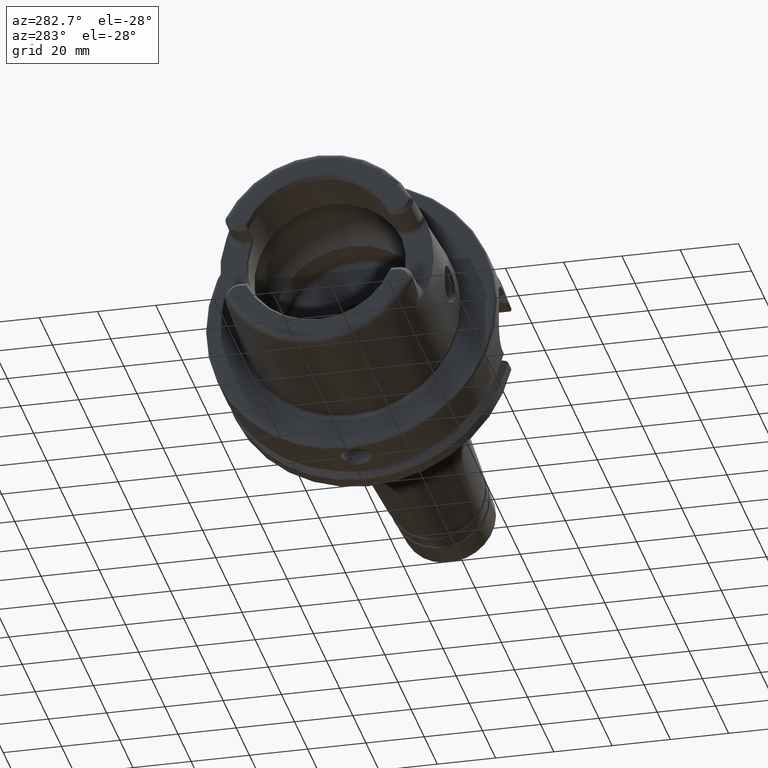
[diagram: clean part render]
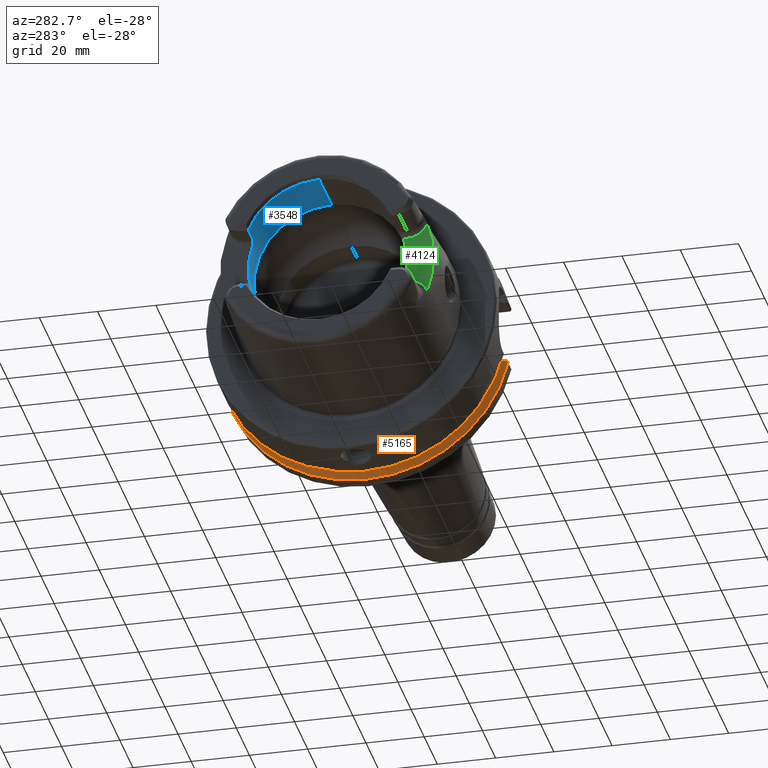
[diagram: same view with three faces highlighted in distinct colors, each labeled with its STEP entity id]
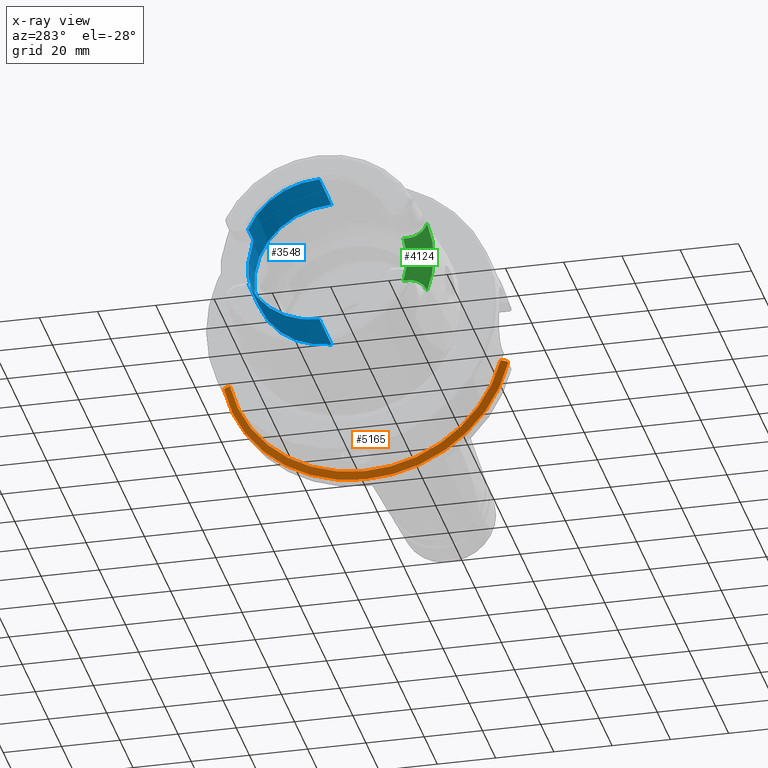
[diagram: x-ray of the same camera — body ghosted, the three highlighted faces saturated]
A machine part, auxiliary view with three faces highlighted in distinct colors.
The next image is the same camera in x-ray (body ghosted, the three faces saturated) — at least one of them is partly hidden behind the body in this view.
Their STEP definitions:

[orange] entity #5165 — the highlighted conical surface has half-angle 60 deg.
#1738=CARTESIAN_POINT('',(9.025137546178E-1,-1.897637795276E0,
-4.330708661417E-1));
#1739=CARTESIAN_POINT('',(9.046209774077E-1,-1.900685839744E0,
-4.361189106105E-1));
#1740=CARTESIAN_POINT('',(9.088525153425E-1,-1.906799881801E0,
-4.422329526667E-1));
#1741=CARTESIAN_POINT('',(9.131182434190E-1,-1.912949828220E0,
-4.483828990862E-1));
#1742=CARTESIAN_POINT('',(9.152596560705E-1,-1.916033777145E0,
-4.514668480115E-1));
#1744=CARTESIAN_POINT('',(9.152596560705E-1,0.E0,0.E0));
#1745=DIRECTION('',(1.E0,0.E0,0.E0));
#1746=DIRECTION('',(0.E0,-9.733451587899E-1,-2.293451587899E-1));
#1747=AXIS2_PLACEMENT_3D('',#1744,#1745,#1746);
#1749=CARTESIAN_POINT('',(9.152596560705E-1,1.925405964459E0,
-4.096579329633E-1));
#1750=CARTESIAN_POINT('',(9.140390772167E-1,1.923623733484E0,
-4.078757019878E-1));
#1751=CARTESIAN_POINT('',(9.116037837886E-1,1.920065414719E0,
-4.043173832231E-1));
#1752=CARTESIAN_POINT('',(9.079684511996E-1,1.914746392828E0,
-3.989983613315E-1));
#1753=CARTESIAN_POINT('',(9.055565973462E-1,1.911212631659E0,
-3.954646001630E-1));
#1754=CARTESIAN_POINT('',(9.043535981212E-1,1.909448818898E0,
-3.937007874016E-1));
#1756=CARTESIAN_POINT('',(8.612204724409E-1,1.833103834776E0,
-3.937007874016E-1));
#1757=CARTESIAN_POINT('',(8.659535952046E-1,1.841488788556E0,
-3.937007874016E-1));
#1758=CARTESIAN_POINT('',(8.754595041852E-1,1.858323888430E0,
-3.937007874016E-1));
#1759=CARTESIAN_POINT('',(8.898371061260E-1,1.883771910416E0,
-3.937007874016E-1));
#1760=CARTESIAN_POINT('',(8.995015633009E-1,1.900868070473E0,
-3.937007874016E-1));
#1761=CARTESIAN_POINT('',(9.043535981212E-1,1.909448818898E0,
-3.937007874016E-1));
#1763=CARTESIAN_POINT('',(8.612204724409E-1,0.E0,0.E0));
#1764=DIRECTION('',(-1.E0,0.E0,0.E0));
#1765=DIRECTION('',(0.E0,9.777047459300E-1,-2.099843560504E-1));
#1766=AXIS2_PLACEMENT_3D('',#1763,#1764,#1765);
#1768=CARTESIAN_POINT('',(9.025137546178E-1,-1.897637795276E0,
-4.330708661417E-1));
#1769=CARTESIAN_POINT('',(8.978681737041E-1,-1.889384534998E0,
-4.330708661417E-1));
#1770=CARTESIAN_POINT('',(8.886152725787E-1,-1.872940656948E0,
-4.330708661417E-1));
#1771=CARTESIAN_POINT('',(8.748509540484E-1,-1.848462980664E0,
-4.330708661417E-1));
#1772=CARTESIAN_POINT('',(8.657511955581E-1,-1.832269380053E0,
-4.330708661417E-1));
#1773=CARTESIAN_POINT('',(8.612204724409E-1,-1.824203827419E0,
-4.330708661417E-1));
#2894=CARTESIAN_POINT('',(8.612204724409E-1,1.833103834776E0,
-3.937007874016E-1));
#2895=VERTEX_POINT('',#2894);
#2918=CARTESIAN_POINT('',(8.612204724409E-1,-1.824203827419E0,
-4.330708661417E-1));
#2919=VERTEX_POINT('',#2918);
#3144=VERTEX_POINT('',#1749);
#3145=VERTEX_POINT('',#1754);
#3160=VERTEX_POINT('',#1738);
#3161=VERTEX_POINT('',#1742);
#5151=CARTESIAN_POINT('',(8.882400642557E-1,0.E0,0.E0));
#5152=DIRECTION('',(1.E0,0.E0,0.E0));
#5153=DIRECTION('',(0.E0,0.E0,1.E0));
#5154=AXIS2_PLACEMENT_3D('',#5151,#5152,#5153);
#5155=CONICAL_SURFACE('',#5154,1.921704631185E0,6.E1);
#5156=ORIENTED_EDGE('',*,*,#4859,.T.);
#5157=ORIENTED_EDGE('',*,*,#4753,.T.);
#5158=ORIENTED_EDGE('',*,*,#5044,.T.);
#5159=ORIENTED_EDGE('',*,*,#5070,.F.);
#5161=ORIENTED_EDGE('',*,*,#5160,.T.);
#5162=ORIENTED_EDGE('',*,*,#5117,.F.);
#5163=EDGE_LOOP('',(#5156,#5157,#5158,#5159,#5161,#5162));
#5164=FACE_OUTER_BOUND('',#5163,.F.);
#5165=ADVANCED_FACE('',(#5164),#5155,.T.);
#1743=B_SPLINE_CURVE_WITH_KNOTS('',3,(#1738,#1739,#1740,#1741,#1742),
.UNSPECIFIED.,.F.,.F.,(4,1,4),(0.E0,5.E-1,1.E0),.UNSPECIFIED.);
#1748=CIRCLE('',#1747,1.968503937008E0);
#1755=B_SPLINE_CURVE_WITH_KNOTS('',3,(#1749,#1750,#1751,#1752,#1753,#1754),
.UNSPECIFIED.,.F.,.F.,(4,1,1,4),(0.E0,3.333333333333E-1,6.666666666667E-1,1.E0),
.UNSPECIFIED.);
#1762=B_SPLINE_CURVE_WITH_KNOTS('',3,(#1756,#1757,#1758,#1759,#1760,#1761),
.UNSPECIFIED.,.F.,.F.,(4,1,1,4),(0.E0,3.333333333333E-1,6.666666666667E-1,1.E0),
.UNSPECIFIED.);
#1767=CIRCLE('',#1766,1.874905325362E0);
#1774=B_SPLINE_CURVE_WITH_KNOTS('',3,(#1768,#1769,#1770,#1771,#1772,#1773),
.UNSPECIFIED.,.F.,.F.,(4,1,1,4),(0.E0,3.333333333333E-1,6.666666666667E-1,1.E0),
.UNSPECIFIED.);
#4753=EDGE_CURVE('',#3161,#3144,#1748,.T.);
#4859=EDGE_CURVE('',#3160,#3161,#1743,.T.);
#5044=EDGE_CURVE('',#3144,#3145,#1755,.T.);
#5070=EDGE_CURVE('',#2895,#3145,#1762,.T.);
#5117=EDGE_CURVE('',#3160,#2919,#1774,.T.);
#5160=EDGE_CURVE('',#2895,#2919,#1767,.T.);

[blue] entity #3548 — the highlighted cylindrical surface (partial cylindrical patch) has radius 26.5 mm, axis along (1, 0, 0).
#237=CARTESIAN_POINT('',(-1.909448818898E0,0.E0,0.E0));
#238=DIRECTION('',(1.E0,0.E0,0.E0));
#239=DIRECTION('',(0.E0,0.E0,-1.E0));
#240=AXIS2_PLACEMENT_3D('',#237,#238,#239);
#242=DIRECTION('',(-1.E0,-2.018124298135E-10,-3.491153386467E-10));
#243=VECTOR('',#242,2.559054990718E-1);
#244=CARTESIAN_POINT('',(-1.653543319825E0,9.610196174403E-1,
-4.061169436263E-1));
#245=LINE('',#244,#243);
#246=CARTESIAN_POINT('',(-1.555118109895E0,9.963385298506E-1,
-3.095144762176E-1));
#247=CARTESIAN_POINT('',(-1.555037675798E0,9.936024567075E-1,
-3.183219979772E-1));
#248=CARTESIAN_POINT('',(-1.557495417086E0,9.880950848529E-1,
-3.352497519196E-1));
#249=CARTESIAN_POINT('',(-1.567977783280E0,9.794626794392E-1,
-3.596361125423E-1));
#250=CARTESIAN_POINT('',(-1.584498344667E0,9.717347583803E-1,
-3.799234196567E-1));
#251=CARTESIAN_POINT('',(-1.605491004577E0,9.656273490341E-1,
-3.951075878999E-1));
#252=CARTESIAN_POINT('',(-1.629474352871E0,9.618298240014E-1,
-4.042085152567E-1));
#253=CARTESIAN_POINT('',(-1.645414990490E0,9.609989741340E-1,
-4.061657931575E-1));
#254=CARTESIAN_POINT('',(-1.653543319825E0,9.610196174403E-1,
-4.061169436263E-1));
#256=CARTESIAN_POINT('',(-1.555118110236E0,0.E0,0.E0));
#257=DIRECTION('',(-1.E0,0.E0,0.E0));
#258=DIRECTION('',(0.E0,9.549810934720E-1,2.966666666667E-1));
#259=AXIS2_PLACEMENT_3D('',#256,#257,#258);
#261=CARTESIAN_POINT('',(-1.653543307688E0,9.610196173903E-1,
4.061169437139E-1));
#262=CARTESIAN_POINT('',(-1.645181784229E0,9.610138646002E-1,
4.061305568966E-1));
#263=CARTESIAN_POINT('',(-1.628924072196E0,9.618781018689E-1,
4.040945314903E-1));
#264=CARTESIAN_POINT('',(-1.605202096531E0,9.657046485065E-1,
3.949182109612E-1));
#265=CARTESIAN_POINT('',(-1.584339430473E0,9.717909810563E-1,
3.797805895288E-1));
#266=CARTESIAN_POINT('',(-1.567787160606E0,9.795728330894E-1,
3.593392097813E-1));
#267=CARTESIAN_POINT('',(-1.557426075219E0,9.881983737369E-1,
3.349416903203E-1));
#268=CARTESIAN_POINT('',(-1.555035569701E0,9.936427153461E-1,
3.181924040950E-1));
#269=CARTESIAN_POINT('',(-1.555118109663E0,9.963385210662E-1,
3.095145046758E-1));
#271=DIRECTION('',(1.E0,5.420409433201E-12,-6.342104634164E-12));
#272=VECTOR('',#271,2.559055112093E-1);
#273=CARTESIAN_POINT('',(-1.909448818897E0,9.610196173889E-1,
4.061169437155E-1));
#274=LINE('',#273,#272);
#275=CARTESIAN_POINT('',(-1.909448818898E0,0.E0,0.E0));
#276=DIRECTION('',(1.E0,0.E0,0.E0));
#277=DIRECTION('',(0.E0,9.211282370446E-1,3.892592592593E-1));
#278=AXIS2_PLACEMENT_3D('',#275,#276,#277);
#280=CARTESIAN_POINT('',(-1.181235262716E0,0.E0,0.E0));
#281=DIRECTION('',(1.E0,0.E0,0.E0));
#282=DIRECTION('',(0.E0,0.E0,-1.E0));
#283=AXIS2_PLACEMENT_3D('',#280,#281,#282);
#308=DIRECTION('',(-1.E0,-5.528316860954E-9,2.894149050536E-11));
#309=VECTOR('',#308,7.282135561456E-1);
#310=CARTESIAN_POINT('',(-1.181235262716E0,0.E0,-1.043307086614E0));
#311=LINE('',#310,#309);
#317=DIRECTION('',(-1.E0,5.528316817347E-9,-2.893844133657E-11));
#318=VECTOR('',#317,7.282135561456E-1);
#319=CARTESIAN_POINT('',(-1.181235262716E0,0.E0,1.043307086614E0));
#320=LINE('',#319,#318);
#2822=CARTESIAN_POINT('',(-1.181235262716E0,0.E0,-1.043307086614E0));
#2823=CARTESIAN_POINT('',(-1.181235262716E0,0.E0,1.043307086614E0));
#2824=VERTEX_POINT('',#2822);
#2825=VERTEX_POINT('',#2823);
#3003=VERTEX_POINT('',#246);
#3004=VERTEX_POINT('',#254);
#3007=CARTESIAN_POINT('',(-1.555118110236E0,9.963385424018E-1,
3.095144356955E-1));
#3008=VERTEX_POINT('',#3007);
#3011=VERTEX_POINT('',#261);
#3023=CARTESIAN_POINT('',(-1.909448818898E0,0.E0,-1.043307086614E0));
#3024=CARTESIAN_POINT('',(-1.909448818898E0,9.610196173891E-1,
-4.061169437154E-1));
#3025=VERTEX_POINT('',#3023);
#3026=VERTEX_POINT('',#3024);
#3029=CARTESIAN_POINT('',(-1.909448818898E0,0.E0,1.043307086614E0));
#3031=VERTEX_POINT('',#3029);
#3033=CARTESIAN_POINT('',(-1.909448818898E0,9.610196173891E-1,
4.061169437154E-1));
#3034=VERTEX_POINT('',#3033);
#3522=CARTESIAN_POINT('',(0.E0,0.E0,0.E0));
#3523=DIRECTION('',(1.E0,0.E0,0.E0));
#3524=DIRECTION('',(0.E0,0.E0,1.E0));
#3525=AXIS2_PLACEMENT_3D('',#3522,#3523,#3524);
#3526=CYLINDRICAL_SURFACE('',#3525,1.043307086614E0);
#3528=ORIENTED_EDGE('',*,*,#3527,.T.);
#3530=ORIENTED_EDGE('',*,*,#3529,.F.);
#3532=ORIENTED_EDGE('',*,*,#3531,.F.);
#3533=ORIENTED_EDGE('',*,*,#3496,.F.);
#3535=ORIENTED_EDGE('',*,*,#3534,.F.);
#3537=ORIENTED_EDGE('',*,*,#3536,.F.);
#3539=ORIENTED_EDGE('',*,*,#3538,.T.);
#3541=ORIENTED_EDGE('',*,*,#3540,.F.);
#3543=ORIENTED_EDGE('',*,*,#3542,.F.);
#3545=ORIENTED_EDGE('',*,*,#3544,.T.);
#3546=EDGE_LOOP('',(#3528,#3530,#3532,#3533,#3535,#3537,#3539,#3541,#3543,
#3545));
#3547=FACE_OUTER_BOUND('',#3546,.F.);
#3548=ADVANCED_FACE('',(#3547),#3526,.F.);
#241=CIRCLE('',#240,1.043307086614E0);
#255=B_SPLINE_CURVE_WITH_KNOTS('',3,(#246,#247,#248,#249,#250,#251,#252,#253,
#254),.UNSPECIFIED.,.F.,.F.,(4,1,1,1,1,1,4),(0.E0,1.666666666667E-1,
3.333333333333E-1,5.E-1,6.666666666667E-1,8.333333333333E-1,1.E0),
.UNSPECIFIED.);
#260=CIRCLE('',#259,1.043307086614E0);
#270=B_SPLINE_CURVE_WITH_KNOTS('',3,(#261,#262,#263,#264,#265,#266,#267,#268,
#269),.UNSPECIFIED.,.F.,.F.,(4,1,1,1,1,1,4),(0.E0,1.666666666667E-1,
3.333333333333E-1,5.E-1,6.666666666667E-1,8.333333333333E-1,1.E0),
.UNSPECIFIED.);
#279=CIRCLE('',#278,1.043307086614E0);
#284=CIRCLE('',#283,1.043307086614E0);
#3496=EDGE_CURVE('',#3008,#3003,#260,.T.);
#3527=EDGE_CURVE('',#3025,#3026,#241,.T.);
#3529=EDGE_CURVE('',#3004,#3026,#245,.T.);
#3531=EDGE_CURVE('',#3003,#3004,#255,.T.);
#3534=EDGE_CURVE('',#3011,#3008,#270,.T.);
#3536=EDGE_CURVE('',#3034,#3011,#274,.T.);
#3538=EDGE_CURVE('',#3034,#3031,#279,.T.);
#3540=EDGE_CURVE('',#2825,#3031,#320,.T.);
#3542=EDGE_CURVE('',#2824,#2825,#284,.T.);
#3544=EDGE_CURVE('',#2824,#3025,#311,.T.);

[green] entity #4124 — the highlighted planar face has unit normal (1, 0, 0).
#939=CARTESIAN_POINT('',(-1.377952755906E0,-1.260103132950E-14,
-1.088018564133E-14));
#940=DIRECTION('',(-1.E0,0.E0,0.E0));
#941=DIRECTION('',(0.E0,-9.549810934720E-1,-2.966666666667E-1));
#942=AXIS2_PLACEMENT_3D('',#939,#940,#941);
#944=DIRECTION('',(-5.228454142383E-9,-9.999999999998E-1,-6.388562258925E-7));
#945=VECTOR('',#944,6.242168774789E-2);
#946=CARTESIAN_POINT('',(-1.377952755579E0,-1.015137367336E0,
3.153543705966E-1));
#947=LINE('',#946,#945);
#948=CARTESIAN_POINT('',(-1.377952755906E0,-1.077559055118E0,
5.862204724409E-1));
#949=DIRECTION('',(-1.E0,0.E0,0.E0));
#950=DIRECTION('',(0.E0,0.E0,-1.E0));
#951=AXIS2_PLACEMENT_3D('',#948,#949,#950);
#953=CARTESIAN_POINT('',(-1.377952755906E0,0.E0,0.E0));
#954=DIRECTION('',(1.E0,0.E0,0.E0));
#955=DIRECTION('',(0.E0,-9.357628524911E-1,3.526299532055E-1));
#956=AXIS2_PLACEMENT_3D('',#953,#954,#955);
#958=CARTESIAN_POINT('',(-1.377952755906E0,-1.077559055118E0,
-5.862204724409E-1));
#959=DIRECTION('',(1.E0,0.E0,0.E0));
#960=DIRECTION('',(0.E0,0.E0,1.E0));
#961=AXIS2_PLACEMENT_3D('',#958,#959,#960);
#963=DIRECTION('',(-3.712462956982E-9,-9.999999999999E-1,4.244865866481E-7));
#964=VECTOR('',#963,6.242168255493E-2);
#965=CARTESIAN_POINT('',(-1.377952755674E0,-1.015137372499E0,
-3.153543572249E-1));
#966=LINE('',#965,#964);
#1005=CARTESIAN_POINT('',(-1.377952755579E0,-1.015137367336E0,
3.153543705966E-1));
#2966=CARTESIAN_POINT('',(-1.377952755906E0,-1.077559055118E0,
-3.153543307087E-1));
#2967=CARTESIAN_POINT('',(-1.377952755906E0,-1.335397259534E0,
-5.032269360625E-1));
#2968=VERTEX_POINT('',#2966);
#2969=VERTEX_POINT('',#2967);
#2972=CARTESIAN_POINT('',(-1.377952755906E0,-1.077559055118E0,
3.153543307087E-1));
#2973=CARTESIAN_POINT('',(-1.377952755906E0,-1.335397259534E0,
5.032269360625E-1));
#2974=VERTEX_POINT('',#2972);
#2975=VERTEX_POINT('',#2973);
#3015=VERTEX_POINT('',#1005);
#3019=CARTESIAN_POINT('',(-1.377952755906E0,-1.015137382825E0,
-3.153543307087E-1));
#3020=VERTEX_POINT('',#3019);
#4107=CARTESIAN_POINT('',(-1.377952755906E0,0.E0,3.940944881890E-1));
#4108=DIRECTION('',(1.E0,0.E0,0.E0));
#4109=DIRECTION('',(0.E0,0.E0,-1.E0));
#4110=AXIS2_PLACEMENT_3D('',#4107,#4108,#4109);
#4111=PLANE('',#4110);
#4113=ORIENTED_EDGE('',*,*,#4112,.T.);
#4115=ORIENTED_EDGE('',*,*,#4114,.T.);
#4116=ORIENTED_EDGE('',*,*,#4097,.T.);
#4117=ORIENTED_EDGE('',*,*,#3821,.T.);
#4119=ORIENTED_EDGE('',*,*,#4118,.F.);
#4121=ORIENTED_EDGE('',*,*,#4120,.F.);
#4122=EDGE_LOOP('',(#4113,#4115,#4116,#4117,#4119,#4121));
#4123=FACE_OUTER_BOUND('',#4122,.F.);
#4124=ADVANCED_FACE('',(#4123),#4111,.F.);
#943=CIRCLE('',#942,1.062992125984E0);
#952=CIRCLE('',#951,2.708661417323E-1);
#957=CIRCLE('',#956,1.427068039706E0);
#962=CIRCLE('',#961,2.708661417323E-1);
#3821=EDGE_CURVE('',#2975,#2969,#957,.T.);
#4097=EDGE_CURVE('',#2974,#2975,#952,.T.);
#4112=EDGE_CURVE('',#3020,#3015,#943,.T.);
#4114=EDGE_CURVE('',#3015,#2974,#947,.T.);
#4118=EDGE_CURVE('',#2968,#2969,#962,.T.);
#4120=EDGE_CURVE('',#3020,#2968,#966,.T.);